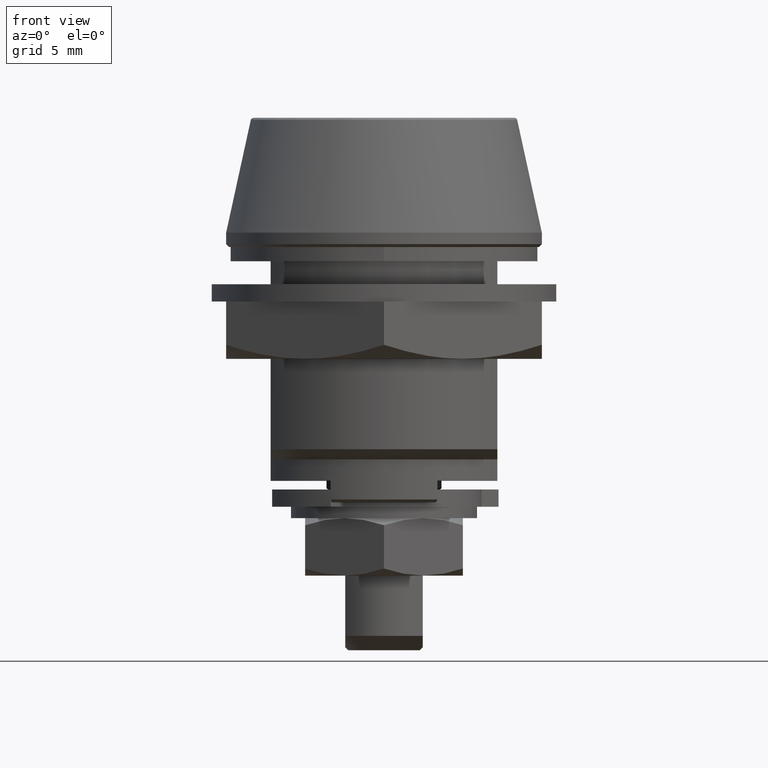
[diagram: clean part render]
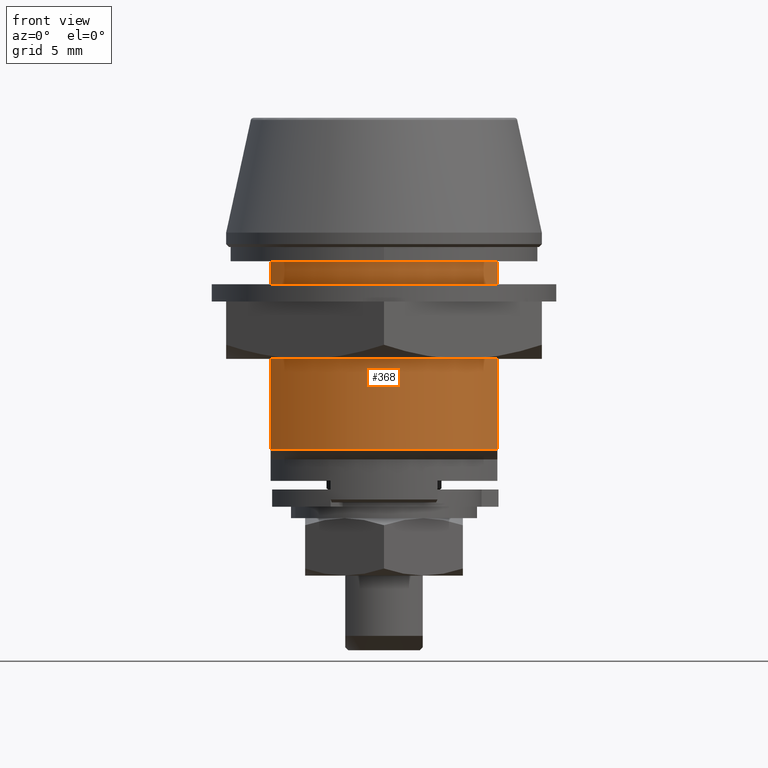
[diagram: same view with one face highlighted and labeled with its STEP entity id]
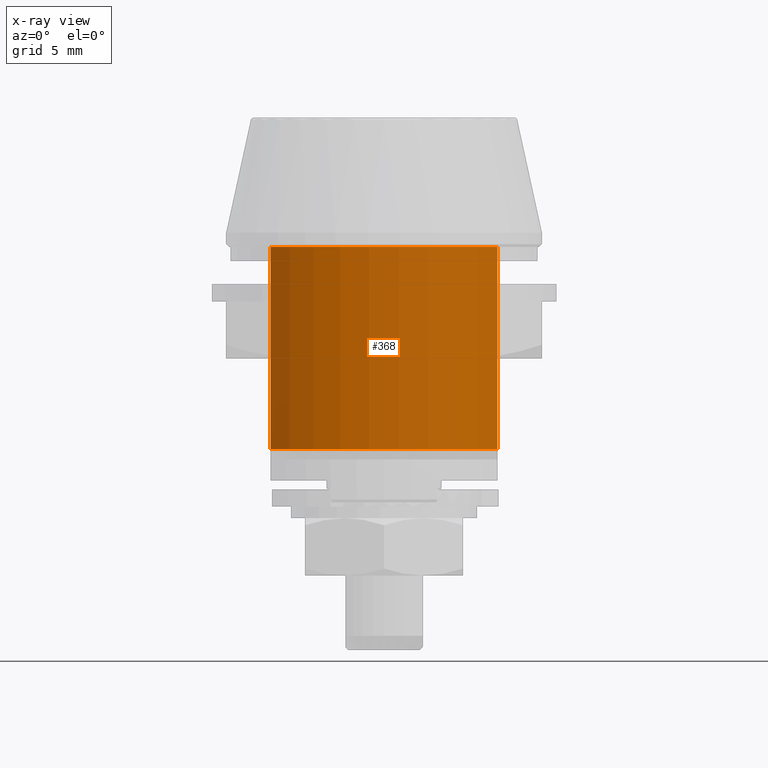
[diagram: x-ray of the same camera — body ghosted, the highlighted face saturated]
A machine part, front view. The second image highlights one B-rep face of the part: STEP entity #368.
The next image is the same camera in x-ray: the body ghosted, the highlighted face saturated — about 0% of this face is hidden behind the body in this view.
In plain terms, the highlighted cylindrical surface (partial cylindrical patch) has radius 9.5 mm, axis along (0, 0, -1).
Its self-contained STEP definition (entity closure, byte-faithful):
#368=ADVANCED_FACE('',(#1505),#1504,.T.);
#1504=CYLINDRICAL_SURFACE('',#2588,9.50000000000E+000);
#1505=FACE_OUTER_BOUND('',#2589,.T.);
#2585=CARTESIAN_POINT('',(-2.05028421589E-015,1.72632621839E-015,-1.73000000000E+001));
#2586=DIRECTION('',(6.13087889054E-017,2.44868967148E-016,-1.00000000000E+000));
#2587=DIRECTION('',(8.31578947386E-001,5.55406566638E-001,1.86984930463E-016));
#2588=AXIS2_PLACEMENT_3D('',#2585,#2586,#2587);
#2589=EDGE_LOOP('',(#3465,#3466,#3467,#3468));
#3465=ORIENTED_EDGE('',*,*,#3979,.F.);
#3466=ORIENTED_EDGE('',*,*,#3970,.T.);
#3467=ORIENTED_EDGE('',*,*,#3980,.T.);
#3468=ORIENTED_EDGE('',*,*,#3963,.T.);
#3963=EDGE_CURVE('',#6012,#6005,#6013,.T.);
#3970=EDGE_CURVE('',#6060,#6053,#6061,.T.);
#3979=EDGE_CURVE('',#6060,#6005,#6118,.T.);
#3980=EDGE_CURVE('',#6053,#6012,#6124,.T.);
#6005=VERTEX_POINT('',#7805);
#6012=VERTEX_POINT('',#7810);
#6013=LINE('',#7811,#7812);
#6053=VERTEX_POINT('',#7835);
#6060=VERTEX_POINT('',#7839);
#6061=LINE('',#7840,#7841);
#6118=CIRCLE('',#7878,9.49999999978E+000);
#6124=CIRCLE('',#7882,9.49999999978E+000);
#7805=CARTESIAN_POINT('',(-7.89999999967E+000,-5.27636238342E+000,-1.73000000000E+001));
#7810=CARTESIAN_POINT('',(-7.89999999967E+000,-5.27636238342E+000,-3.20000000000E+000));
#7811=CARTESIAN_POINT('',(-7.90000000000E+000,-5.27636238300E+000,-3.20000000000E+000));
#7812=VECTOR('',#7813,1.41000000000E+001);
#7813=DIRECTION('',(0.00000000000E+000,0.00000000000E+000,-1.00000000000E+000));
#7835=CARTESIAN_POINT('',(7.89999999982E+000,-5.27636238319E+000,-3.20000000000E+000));
#7839=CARTESIAN_POINT('',(7.89999999982E+000,-5.27636238319E+000,-1.73000000000E+001));
#7840=CARTESIAN_POINT('',(7.90000000000E+000,-5.27636238300E+000,-1.73000000000E+001));
#7841=VECTOR('',#7842,1.41000000000E+001);
#7842=DIRECTION('',(0.00000000000E+000,0.00000000000E+000,1.00000000000E+000));
#7875=CARTESIAN_POINT('',(1.26217744835E-029,5.67979851759E-028,-1.73000000000E+001));
#7876=DIRECTION('',(-3.80114942365E-015,5.75530069520E-015,-1.00000000000E+000));
#7877=DIRECTION('',(-8.31578947368E-001,5.55406566664E-001,6.35748763575E-015));
#7878=AXIS2_PLACEMENT_3D('',#7875,#7876,#7877);
#7879=CARTESIAN_POINT('',(6.31088724177E-030,7.57306469012E-029,-3.20000000000E+000));
#7880=DIRECTION('',(-3.87889578948E-015,5.80722702432E-015,-1.00000000000E+000));
#7881=DIRECTION('',(-8.31578947368E-001,5.55406566664E-001,6.45098010098E-015));
#7882=AXIS2_PLACEMENT_3D('',#7879,#7880,#7881);